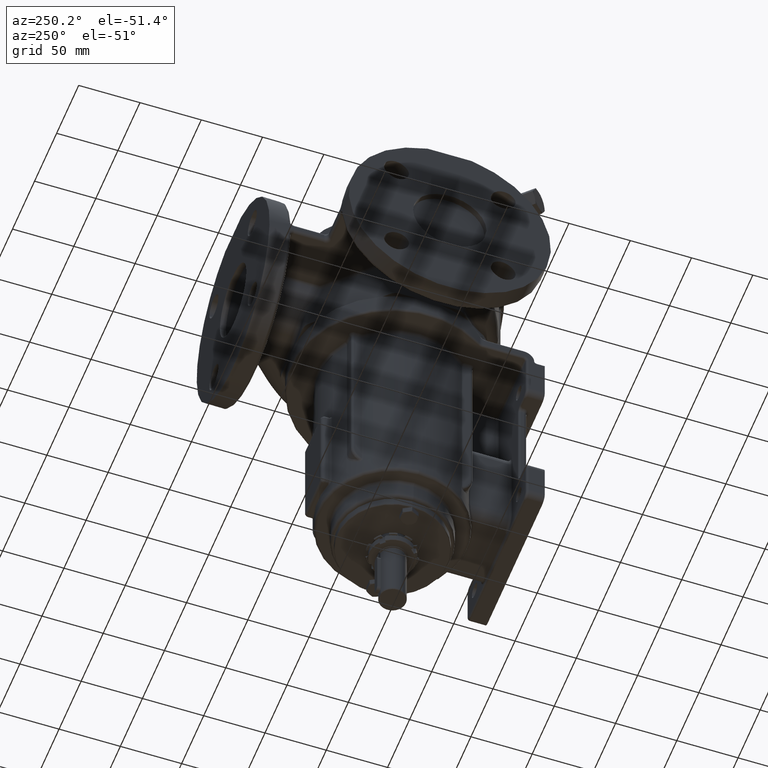
[diagram: clean part render]
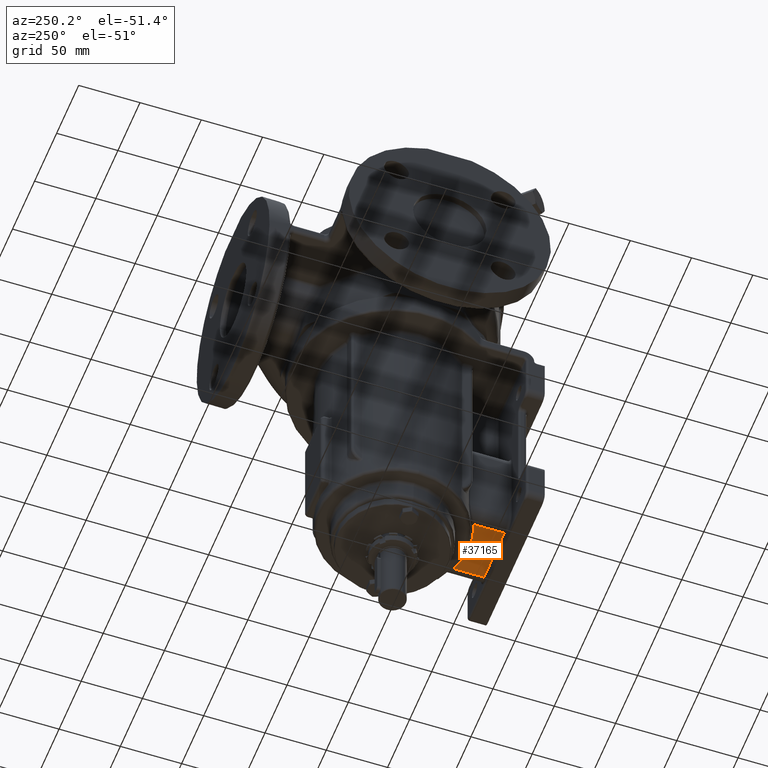
[diagram: same view with one face highlighted and labeled with its STEP entity id]
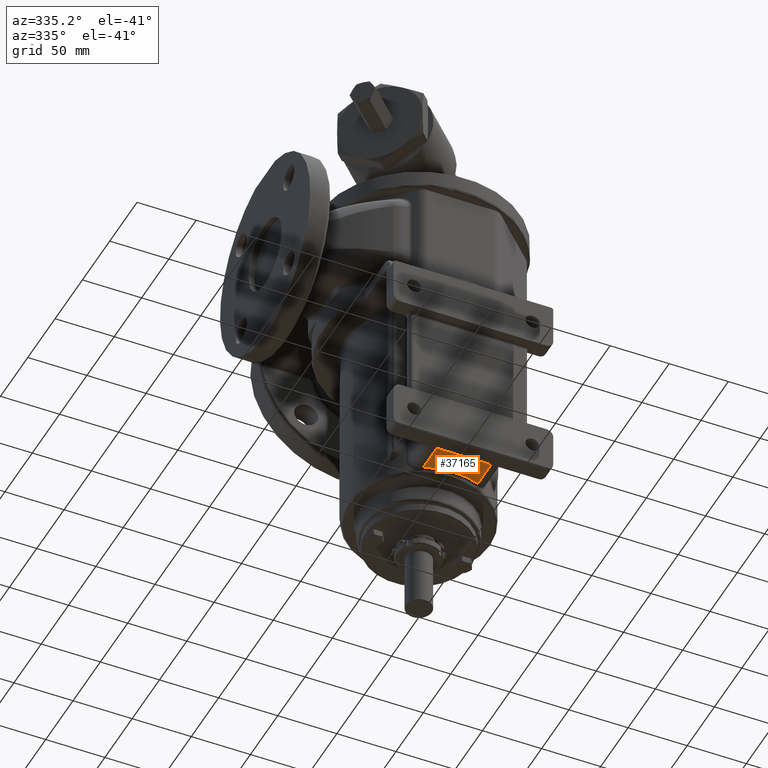
[diagram: same view with one face highlighted and labeled with its STEP entity id]
A machine part, auxiliary view. The second image highlights one B-rep face of the part: STEP entity #37165.
A second angle (auxiliary view) of the same face is appended — the face is thin or edge-on in the first view.
In plain terms, the highlighted planar face has unit normal (0, 0, -1).
Its self-contained STEP definition (entity closure, byte-faithful):
#7951=CARTESIAN_POINT('',(-2.3E1,-8.303137303340E1,-1.735E2));
#8003=DIRECTION('',(-1.E0,0.E0,0.E0));
#8004=VECTOR('',#8003,4.6E1);
#8005=CARTESIAN_POINT('',(2.3E1,-8.303137303340E1,-1.735E2));
#8006=LINE('',#8005,#8004);
#8007=DIRECTION('',(4.077258342809E-11,-1.E0,0.E0));
#8008=VECTOR('',#8007,2.491726114949E1);
#8009=CARTESIAN_POINT('',(2.299999999898E1,-5.811411188391E1,-1.735E2));
#8010=LINE('',#8009,#8008);
#8011=CARTESIAN_POINT('',(0.E0,0.E0,-1.735E2));
#8012=DIRECTION('',(0.E0,0.E0,1.E0));
#8013=DIRECTION('',(-3.68E-1,-9.298257901349E-1,0.E0));
#8014=AXIS2_PLACEMENT_3D('',#8011,#8012,#8013);
#8016=DIRECTION('',(-4.682626310312E-11,-1.E0,0.E0));
#8017=VECTOR('',#8016,2.491726114942E1);
#8018=CARTESIAN_POINT('',(-2.299999999883E1,-5.811411188399E1,-1.735E2));
#8019=LINE('',#8018,#8017);
#12128=CARTESIAN_POINT('',(-2.3E1,-5.811411188343E1,-1.735E2));
#12129=CARTESIAN_POINT('',(2.3E1,-5.811411188343E1,-1.735E2));
#12130=VERTEX_POINT('',#12128);
#12131=VERTEX_POINT('',#12129);
#12378=VERTEX_POINT('',#7951);
#12381=CARTESIAN_POINT('',(2.3E1,-8.303137303340E1,-1.735E2));
#12382=VERTEX_POINT('',#12381);
#37151=CARTESIAN_POINT('',(3.3E1,-8.5E1,-1.735E2));
#37152=DIRECTION('',(0.E0,0.E0,-1.E0));
#37153=DIRECTION('',(-1.E0,0.E0,0.E0));
#37154=AXIS2_PLACEMENT_3D('',#37151,#37152,#37153);
#37155=PLANE('',#37154);
#37157=ORIENTED_EDGE('',*,*,#37156,.F.);
#37159=ORIENTED_EDGE('',*,*,#37158,.F.);
#37161=ORIENTED_EDGE('',*,*,#37160,.F.);
#37162=ORIENTED_EDGE('',*,*,#37143,.T.);
#37163=EDGE_LOOP('',(#37157,#37159,#37161,#37162));
#37164=FACE_OUTER_BOUND('',#37163,.F.);
#37165=ADVANCED_FACE('',(#37164),#37155,.T.);
#8015=CIRCLE('',#8014,6.25E1);
#37143=EDGE_CURVE('',#12130,#12378,#8019,.T.);
#37156=EDGE_CURVE('',#12382,#12378,#8006,.T.);
#37158=EDGE_CURVE('',#12131,#12382,#8010,.T.);
#37160=EDGE_CURVE('',#12130,#12131,#8015,.T.);